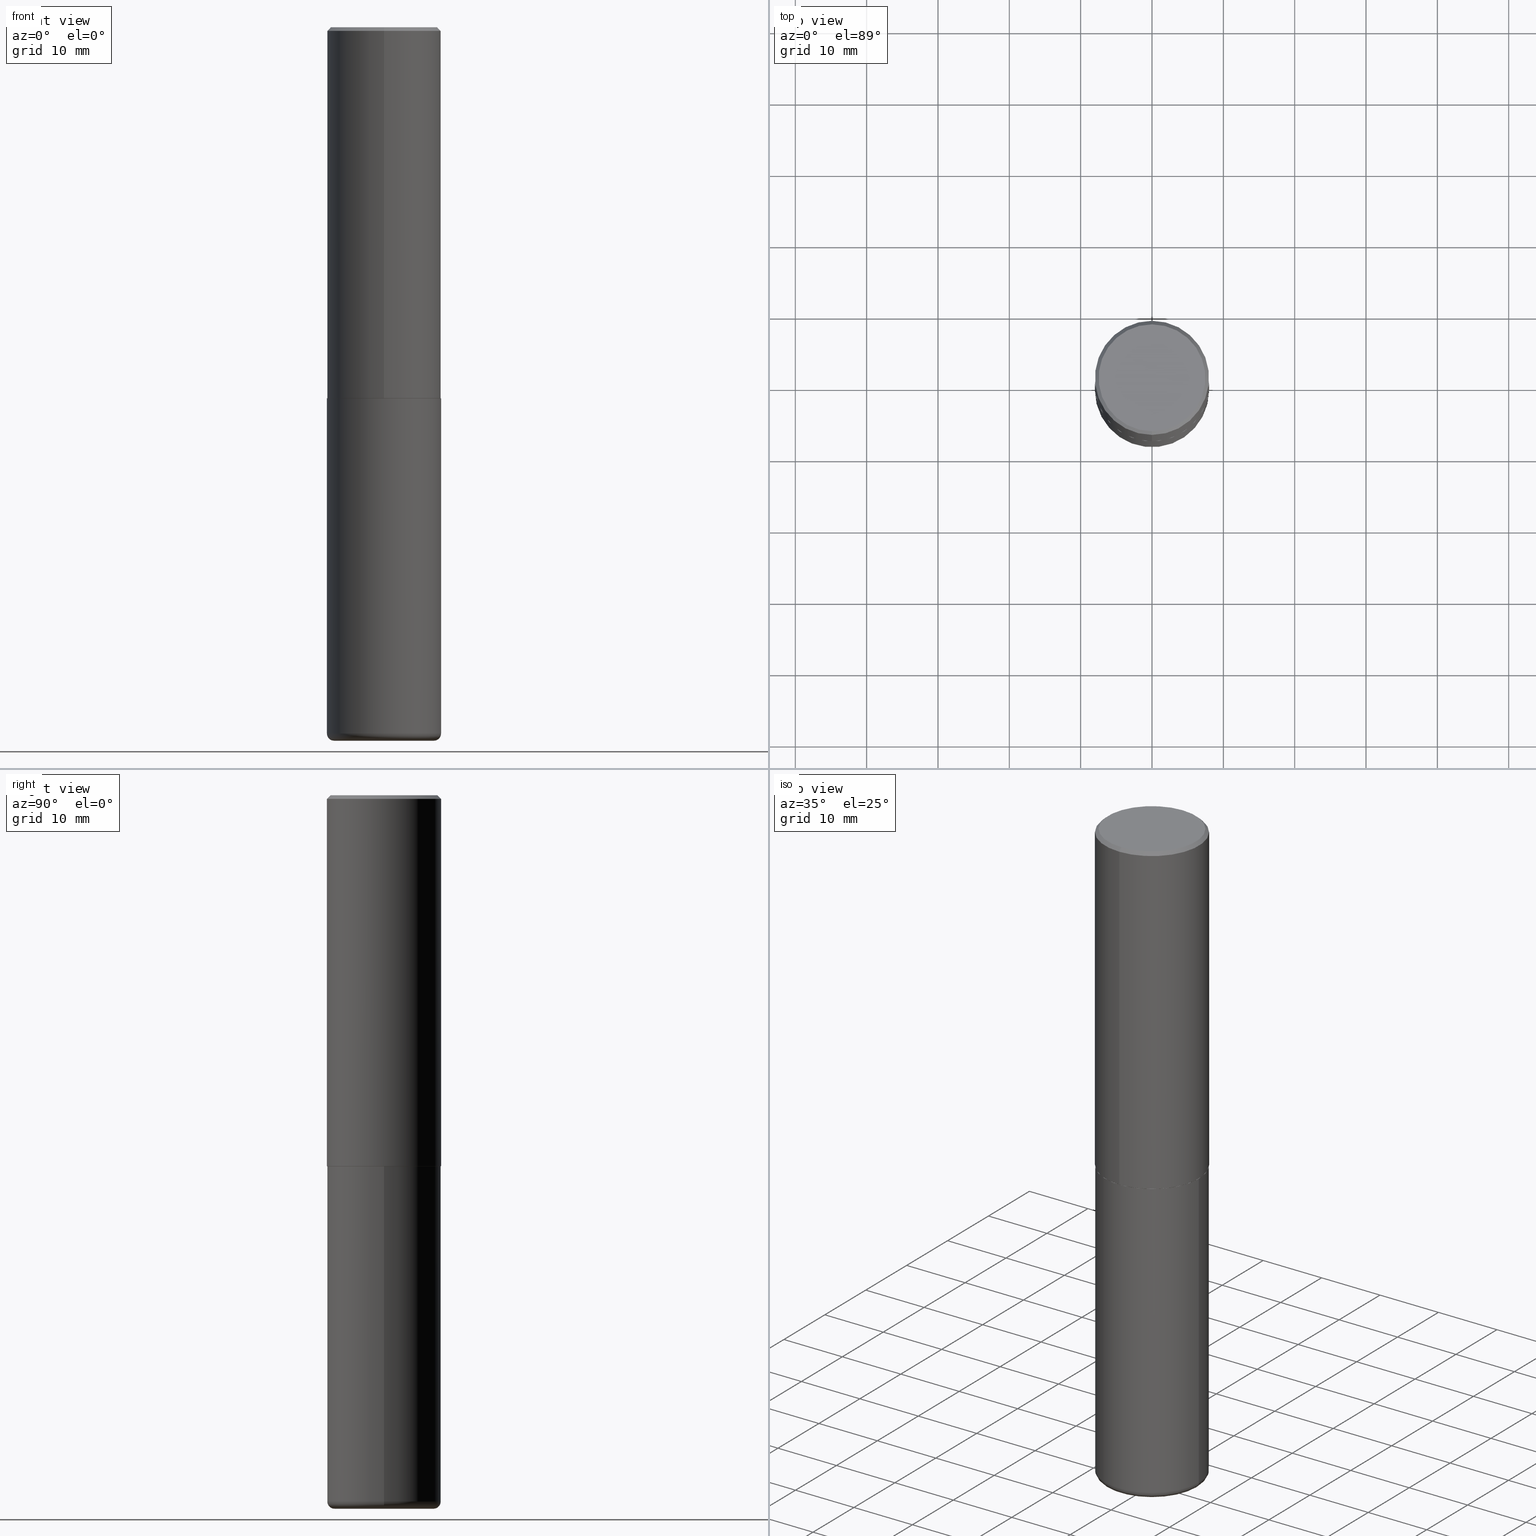
[diagram: canonical four-view strip — front | top / right | iso, engineering-drawing reading convention]
A machine part, canonical four-view strip (front | top / right | iso — engineering-drawing reading convention). The complete STEP part file that produces these views, byte-faithful:
ISO-10303-21;
HEADER;
FILE_DESCRIPTION (( 'STEP AP203' ),
    '1' );
FILE_NAME ('47562.STEP',
    '2024-03-06T11:44:48',
    ( '' ),
    ( '' ),
    'SwSTEP 2.0',
    'SolidWorks 2023',
    '' );
FILE_SCHEMA (( 'CONFIG_CONTROL_DESIGN' ));
ENDSEC;

DATA;
#1 = CIRCLE ( 'NONE', #252, 0.2755500000000000171 ) ;
#2 = EDGE_LOOP ( 'NONE', ( #367, #11, #34, #91 ) ) ;
#3 = CARTESIAN_POINT ( 'NONE',  ( -2.160713844398144151E-15, -0.3149500000000002298, -0.01999999999999896999 ) ) ;
#4 = LINE ( 'NONE', #128, #94 ) ;
#5 = ORIENTED_EDGE ( 'NONE', *, *, #264, .F. ) ;
#6 = CARTESIAN_POINT ( 'NONE',  ( 2.059624841783566430E-15, 0.2949500000000003230, -1.121269247573966471E-15 ) ) ;
#7 = CARTESIAN_POINT ( 'NONE',  ( 2.129454468560428545E-15, 0.2949500000000003230, -1.213358457966104521E-15 ) ) ;
#8 = CARTESIAN_POINT ( 'NONE',  ( 5.009428752644114609E-29, -7.143371324355440401E-15, -2.047200000000000131 ) ) ;
#9 = EDGE_CURVE ( 'NONE', #204, #413, #243, .T. ) ;
#10 = CIRCLE ( 'NONE', #346, 0.3149500000000001743 ) ;
#11 = ORIENTED_EDGE ( 'NONE', *, *, #264, .T. ) ;
#12 = ORIENTED_EDGE ( 'NONE', *, *, #51, .T. ) ;
#13 = PLANE ( 'NONE',  #194 ) ;
#14 = CC_DESIGN_PERSON_AND_ORGANIZATION_ASSIGNMENT ( #407, #236, ( #359 ) ) ;
#15 = PERSON ( 'UNSPECIFIED', 'UNSPECIFIED', 'UNSPECIFIED', ('UNSPECIFIED'), ('UNSPECIFIED'), ('UNSPECIFIED') ) ;
#16 = VECTOR ( 'NONE', #164, 39.37007874015748143 ) ;
#17 = VERTEX_POINT ( 'NONE', #262 ) ;
#18 = VECTOR ( 'NONE', #229, 39.37007874015748143 ) ;
#19 =( NAMED_UNIT ( * ) PLANE_ANGLE_UNIT ( ) SI_UNIT ( $, .RADIAN. ) );
#20 = APPLICATION_PROTOCOL_DEFINITION ( 'international standard', 'config_control_design', 1994, #196 ) ;
#21 = CARTESIAN_POINT ( 'NONE',  ( 4.893931958425293692E-31, -6.978674603707955407E-17, -0.02000000000000006981 ) ) ;
#22 = ORIENTED_EDGE ( 'NONE', *, *, #136, .T. ) ;
#23 = ADVANCED_FACE ( 'NONE', ( #285 ), #263, .T. ) ;
#24 = ORIENTED_EDGE ( 'NONE', *, *, #335, .T. ) ;
#25 = AXIS2_PLACEMENT_3D ( 'NONE', #269, #339, #172 ) ;
#26 = EDGE_CURVE ( 'NONE', #365, #413, #100, .T. ) ;
#27 = FACE_OUTER_BOUND ( 'NONE', #401, .T. ) ;
#28 = AXIS2_PLACEMENT_3D ( 'NONE', #112, #304, #148 ) ;
#29 = DATE_AND_TIME ( #311, #300 ) ;
#30 = AXIS2_PLACEMENT_3D ( 'NONE', #60, #323, #38 ) ;
#31 = DIRECTION ( 'NONE',  ( -2.446965979212638438E-29, 3.489337301853966019E-15, 1.000000000000000000 ) ) ;
#32 = DIRECTION ( 'NONE',  ( -4.937700262165222518E-15, -0.7071067811866417196, 0.7071067811864533148 ) ) ;
#33 = ORIENTED_EDGE ( 'NONE', *, *, #402, .T. ) ;
#34 = ORIENTED_EDGE ( 'NONE', *, *, #414, .F. ) ;
#35 = ADVANCED_FACE ( 'NONE', ( #293 ), #222, .F. ) ;
#36 = LOCAL_TIME ( 6, 44, 48.00000000000000000, #368 ) ;
#37 = DIRECTION ( 'NONE',  ( -2.445468806185136597E-29, 3.491481338843145583E-15, 1.000000000000000000 ) ) ;
#38 = DIRECTION ( 'NONE',  ( -6.982962677686265922E-15, -1.000000000000000000, 3.489337301853966019E-15 ) ) ;
#39 = FACE_OUTER_BOUND ( 'NONE', #50, .T. ) ;
#40 = CARTESIAN_POINT ( 'NONE',  ( 2.234301632597685968E-15, 0.3139499999999928459, -2.047200000000001463 ) ) ;
#41 = ADVANCED_FACE ( 'NONE', ( #39 ), #162, .T. ) ;
#42 = CARTESIAN_POINT ( 'NONE',  ( 5.006363740022212801E-29, -7.147760596879689780E-15, -2.047200000000000575 ) ) ;
#43 = CARTESIAN_POINT ( 'NONE',  ( 0.2755500000000000171, -1.567011739686191643E-14, -3.937000000000000277 ) ) ;
#44 = CIRCLE ( 'NONE', #28, 0.3139500000000000068 ) ;
#45 = CARTESIAN_POINT ( 'NONE',  ( 5.009428752644115170E-29, -7.143371324355441979E-15, -2.047200000000000575 ) ) ;
#46 = COORDINATED_UNIVERSAL_TIME_OFFSET ( 5, 0, .BEHIND. ) ;
#47 = CARTESIAN_POINT ( 'NONE',  ( 5.006363740022212801E-29, -7.147760596879689780E-15, -2.047200000000000575 ) ) ;
#48 = AXIS2_PLACEMENT_3D ( 'NONE', #209, #410, #124 ) ;
#49 = DATE_AND_TIME ( #205, #195 ) ;
#50 = EDGE_LOOP ( 'NONE', ( #5, #380, #89, #258 ) ) ;
#51 = EDGE_CURVE ( 'NONE', #257, #75, #295, .T. ) ;
#52 = CARTESIAN_POINT ( 'NONE',  ( 9.627810689950883669E-29, -1.374596203102546341E-14, -3.937000000000000277 ) ) ;
#53 = AXIS2_PLACEMENT_3D ( 'NONE', #379, #223, #287 ) ;
#54 = ADVANCED_FACE ( 'NONE', ( #265 ), #412, .T. ) ;
#55 = FACE_OUTER_BOUND ( 'NONE', #2, .T. ) ;
#56 = DIRECTION ( 'NONE',  ( 1.000000000000000000, -6.982962677686266711E-15, 4.876176775795936353E-29 ) ) ;
#57 = CARTESIAN_POINT ( 'NONE',  ( 4.893931958425293692E-31, -6.978674603707955407E-17, -0.02000000000000006981 ) ) ;
#58 = FACE_OUTER_BOUND ( 'NONE', #274, .T. ) ;
#59 = ORIENTED_EDGE ( 'NONE', *, *, #329, .T. ) ;
#60 = CARTESIAN_POINT ( 'NONE',  ( 0.000000000000000000, 0.000000000000000000, 0.000000000000000000 ) ) ;
#61 = PERSON_AND_ORGANIZATION ( #15, #313 ) ;
#62 = DIRECTION ( 'NONE',  ( 1.000000000000000000, -6.982962677686266711E-15, 4.876176775795936353E-29 ) ) ;
#63 = DIMENSIONAL_EXPONENTS ( 1.000000000000000000, 0.000000000000000000, 0.000000000000000000, 0.000000000000000000, 0.000000000000000000, 0.000000000000000000, 0.000000000000000000 ) ;
#64 = AXIS2_PLACEMENT_3D ( 'NONE', #134, #302, #350 ) ;
#65 = AXIS2_PLACEMENT_3D ( 'NONE', #397, #242, #56 ) ;
#66 = DIRECTION ( 'NONE',  ( 6.982962677686265922E-15, 1.000000000000000000, -3.489337301853966019E-15 ) ) ;
#67 = ADVANCED_FACE ( 'NONE', ( #231 ), #377, .T. ) ;
#68 = LINE ( 'NONE', #197, #381 ) ;
#69 = DIRECTION ( 'NONE',  ( 1.000000000000000000, -6.982962677686264344E-15, 0.000000000000000000 ) ) ;
#70 = CARTESIAN_POINT ( 'NONE',  ( 9.531459218987189074E-29, -1.360839766627504420E-14, -3.897600000000000176 ) ) ;
#71 = DIRECTION ( 'NONE',  ( -6.982962677686266711E-15, -1.000000000000000000, 3.491481338843145583E-15 ) ) ;
#72 = ORIENTED_EDGE ( 'NONE', *, *, #191, .F. ) ;
#73 = CARTESIAN_POINT ( 'NONE',  ( 0.3149500000000000077, -1.580768176161233565E-14, -3.897600000000000176 ) ) ;
#74 = CARTESIAN_POINT ( 'NONE',  ( 4.893931958425293692E-31, -6.978674603707955407E-17, -0.02000000000000006981 ) ) ;
#75 = VERTEX_POINT ( 'NONE', #343 ) ;
#76 = AXIS2_PLACEMENT_3D ( 'NONE', #6, #126, #66 ) ;
#77 =( CONVERSION_BASED_UNIT ( 'INCH', #176 ) LENGTH_UNIT ( ) NAMED_UNIT ( #63 ) );
#78 = APPROVAL ( #309, 'UNSPECIFIED' ) ;
#79 = APPROVAL_STATUS ( 'not_yet_approved' ) ;
#80 = VERTEX_POINT ( 'NONE', #153 ) ;
#81 = FACE_OUTER_BOUND ( 'NONE', #347, .T. ) ;
#82 = CARTESIAN_POINT ( 'NONE',  ( -2.199284095337291449E-15, -0.3149500000000002853, 1.098966783218907654E-15 ) ) ;
#83 = DIRECTION ( 'NONE',  ( 2.446965979212638438E-29, -3.489337301853966019E-15, -1.000000000000000000 ) ) ;
#84 = PERSON_AND_ORGANIZATION_ROLE ( 'creator' ) ;
#85 = AXIS2_PLACEMENT_3D ( 'NONE', #169, #111, #399 ) ;
#86 = PRODUCT_DEFINITION ( 'UNKNOWN', '', #253, #167 ) ;
#87 = ORIENTED_EDGE ( 'NONE', *, *, #366, .F. ) ;
#88 = CARTESIAN_POINT ( 'NONE',  ( -2.192301132659553370E-15, -0.3139500000000071678, -2.047199999999999243 ) ) ;
#89 = ORIENTED_EDGE ( 'NONE', *, *, #298, .T. ) ;
#90 = DIRECTION ( 'NONE',  ( -2.445468806185136597E-29, 3.491481338843145583E-15, 1.000000000000000000 ) ) ;
#91 = ORIENTED_EDGE ( 'NONE', *, *, #298, .F. ) ;
#92 = DIRECTION ( 'NONE',  ( -2.446965979212638438E-29, 3.489337301853966019E-15, 1.000000000000000000 ) ) ;
#93 = AXIS2_PLACEMENT_3D ( 'NONE', #8, #95, #351 ) ;
#94 = VECTOR ( 'NONE', #32, 39.37007874015748143 ) ;
#95 = DIRECTION ( 'NONE',  ( -2.446965979212638438E-29, 3.489337301853966019E-15, 1.000000000000000000 ) ) ;
#96 = DIRECTION ( 'NONE',  ( -2.445468806185136597E-29, 3.491481338843145583E-15, 1.000000000000000000 ) ) ;
#97 = AXIS2_PLACEMENT_3D ( 'NONE', #74, #83, #256 ) ;
#98 = COORDINATED_UNIVERSAL_TIME_OFFSET ( 5, 0, .BEHIND. ) ;
#99 = CC_DESIGN_APPROVAL ( #78, ( #253 ) ) ;
#100 = LINE ( 'NONE', #190, #16 ) ;
#101 = EDGE_LOOP ( 'NONE', ( #12, #238, #237, #340 ) ) ;
#102 = EDGE_CURVE ( 'NONE', #75, #297, #290, .T. ) ;
#103 = DATE_AND_TIME ( #125, #36 ) ;
#104 = ORIENTED_EDGE ( 'NONE', *, *, #281, .F. ) ;
#105 = ORIENTED_EDGE ( 'NONE', *, *, #352, .T. ) ;
#106 = VERTEX_POINT ( 'NONE', #338 ) ;
#107 = ORIENTED_EDGE ( 'NONE', *, *, #171, .F. ) ;
#108 = EDGE_CURVE ( 'NONE', #235, #142, #44, .T. ) ;
#109 = CARTESIAN_POINT ( 'NONE',  ( 2.199284095337290660E-15, 0.3149500000000000632, -0.02000000000000116615 ) ) ;
#110 = APPROVAL_PERSON_ORGANIZATION ( #175, #78, #211 ) ;
#111 = DIRECTION ( 'NONE',  ( 0.000000000000000000, 0.000000000000000000, 1.000000000000000000 ) ) ;
#112 = CARTESIAN_POINT ( 'NONE',  ( 5.009428752644114609E-29, -7.143371324355440401E-15, -2.047200000000000131 ) ) ;
#113 = CARTESIAN_POINT ( 'NONE',  ( 4.506783297642337076E-45, -6.426606338391306016E-31, -1.841784207842761497E-16 ) ) ;
#114 = EDGE_CURVE ( 'NONE', #325, #413, #152, .T. ) ;
#115 = AXIS2_PLACEMENT_3D ( 'NONE', #113, #358, #288 ) ;
#116 = APPLICATION_PROTOCOL_DEFINITION ( 'international standard', 'config_control_design', 1994, #177 ) ;
#117 = DIRECTION ( 'NONE',  ( 1.000000000000000000, -6.982962677686268288E-15, 0.000000000000000000 ) ) ;
#118 = ORIENTED_EDGE ( 'NONE', *, *, #171, .T. ) ;
#119 = DIRECTION ( 'NONE',  ( 1.000000000000000000, -6.982962677686264344E-15, 0.000000000000000000 ) ) ;
#120 = MANIFOLD_SOLID_BREP ( 'Body-Move/Copy2[1]', #185 ) ;
#121 = CLOSED_SHELL ( 'NONE', ( #373, #308, #127, #145, #67, #41, #260, #35 ) ) ;
#122 = APPROVAL_PERSON_ORGANIZATION ( #130, #294, #261 ) ;
#123 = SECURITY_CLASSIFICATION_LEVEL ( 'unclassified' ) ;
#124 = DIRECTION ( 'NONE',  ( 1.000000000000000000, -6.982962677686269866E-15, 4.883557194083113462E-29 ) ) ;
#125 = CALENDAR_DATE ( 2024, 6, 3 ) ;
#126 = DIRECTION ( 'NONE',  ( 2.446965979212638158E-29, -3.489337301853966019E-15, -1.000000000000000000 ) ) ;
#127 = ADVANCED_FACE ( 'NONE', ( #391 ), #336, .T. ) ;
#128 = CARTESIAN_POINT ( 'NONE',  ( -2.192301132659553370E-15, -0.3139500000000071678, -2.047199999999999243 ) ) ;
#129 = AXIS2_PLACEMENT_3D ( 'NONE', #382, #92, #344 ) ;
#130 = PERSON_AND_ORGANIZATION ( #15, #313 ) ;
#131 = CIRCLE ( 'NONE', #25, 0.3149500000000003408 ) ;
#132 = DIRECTION ( 'NONE',  ( -2.446965979212638438E-29, 3.489337301853966019E-15, 1.000000000000000000 ) ) ;
#133 = DIRECTION ( 'NONE',  ( -4.851104656540955597E-15, -0.7071067811865487940, -0.7071067811865461294 ) ) ;
#134 = CARTESIAN_POINT ( 'NONE',  ( 5.006981786664901703E-29, -7.139881987053586380E-15, -2.046200000000000241 ) ) ;
#135 = CYLINDRICAL_SURFACE ( 'NONE', #65, 0.3149500000000000077 ) ;
#136 = EDGE_CURVE ( 'NONE', #241, #297, #327, .T. ) ;
#137 = CARTESIAN_POINT ( 'NONE',  ( 5.006363740022212801E-29, -7.147760596879689780E-15, -2.047200000000000575 ) ) ;
#138 = SECURITY_CLASSIFICATION ( '', '', #123 ) ;
#139 = ORIENTED_EDGE ( 'NONE', *, *, #184, .T. ) ;
#140 = CARTESIAN_POINT ( 'NONE',  ( 9.531459218987189074E-29, -1.360839766627504420E-14, -3.897600000000000176 ) ) ;
#141 = EDGE_LOOP ( 'NONE', ( #332, #87, #392, #353 ) ) ;
#142 = VERTEX_POINT ( 'NONE', #88 ) ;
#143 = AXIS2_PLACEMENT_3D ( 'NONE', #140, #226, #69 ) ;
#144 = LOCAL_TIME ( 6, 44, 48.00000000000000000, #389 ) ;
#145 = ADVANCED_FACE ( 'NONE', ( #348 ), #388, .T. ) ;
#146 = ORIENTED_EDGE ( 'NONE', *, *, #366, .T. ) ;
#147 = EDGE_LOOP ( 'NONE', ( #374, #188, #105, #357 ) ) ;
#148 = DIRECTION ( 'NONE',  ( -6.982962677686266711E-15, -1.000000000000000000, 3.480615376543096919E-15 ) ) ;
#149 = AXIS2_PLACEMENT_3D ( 'NONE', #282, #386, #119 ) ;
#150 = ORIENTED_EDGE ( 'NONE', *, *, #246, .F. ) ;
#151 = CARTESIAN_POINT ( 'NONE',  ( 9.627810689950883669E-29, -1.374596203102546341E-14, -3.937000000000000277 ) ) ;
#152 = LINE ( 'NONE', #345, #18 ) ;
#153 = CARTESIAN_POINT ( 'NONE',  ( 0.3149500000000000077, -9.347044692216979650E-15, -2.047200000000000575 ) ) ;
#154 = EDGE_LOOP ( 'NONE', ( #199, #330 ) ) ;
#155 = CC_DESIGN_PERSON_AND_ORGANIZATION_ASSIGNMENT ( #160, #163, ( #253 ) ) ;
#156 = CIRCLE ( 'NONE', #328, 0.03939999999999999752 ) ;
#157 = PLANE ( 'NONE',  #296 ) ;
#158 = DIRECTION ( 'NONE',  ( -6.982962677686266711E-15, -1.000000000000000000, 3.480615376543096919E-15 ) ) ;
#159 = CARTESIAN_POINT ( 'NONE',  ( -0.3149500000000000077, -8.140224785300930216E-15, -2.047200000000000575 ) ) ;
#160 = PERSON_AND_ORGANIZATION ( #15, #313 ) ;
#161 = ADVANCED_FACE ( 'NONE', ( #27 ), #369, .T. ) ;
#162 = CONICAL_SURFACE ( 'NONE', #93, 0.3139500000000000068, 0.7853981633975849475 ) ;
#163 = PERSON_AND_ORGANIZATION_ROLE ( 'creator' ) ;
#164 = DIRECTION ( 'NONE',  ( -2.446965979212638158E-29, 3.489337301853966019E-15, 1.000000000000000000 ) ) ;
#165 = CARTESIAN_POINT ( 'NONE',  ( 0.2755500000000000171, -1.553255303211149406E-14, -3.897600000000000176 ) ) ;
#166 = LINE ( 'NONE', #284, #355 ) ;
#167 = DESIGN_CONTEXT ( 'detailed design', #177, 'design' ) ;
#168 = DIRECTION ( 'NONE',  ( 1.000000000000000000, -6.982962677686268288E-15, 0.000000000000000000 ) ) ;
#169 = CARTESIAN_POINT ( 'NONE',  ( 0.000000000000000000, 0.000000000000000000, 0.000000000000000000 ) ) ;
#170 = ORIENTED_EDGE ( 'NONE', *, *, #9, .F. ) ;
#171 = EDGE_CURVE ( 'NONE', #106, #325, #193, .T. ) ;
#172 = DIRECTION ( 'NONE',  ( -6.982962677686265922E-15, -1.000000000000000000, 3.469564049740289220E-15 ) ) ;
#173 = ORIENTED_EDGE ( 'NONE', *, *, #281, .T. ) ;
#174 = CC_DESIGN_SECURITY_CLASSIFICATION ( #138, ( #253 ) ) ;
#175 = PERSON_AND_ORGANIZATION ( #15, #313 ) ;
#176 = LENGTH_MEASURE_WITH_UNIT ( LENGTH_MEASURE( 0.02539999999999999897 ), #200 );
#177 = APPLICATION_CONTEXT ( 'configuration controlled 3d designs of mechanical parts and assemblies' ) ;
#178 = DIRECTION ( 'NONE',  ( 2.438088387897960049E-29, -3.491481338843145188E-15, -1.000000000000000000 ) ) ;
#179 = ADVANCED_FACE ( 'NONE', ( #214 ), #208, .T. ) ;
#180 = AXIS2_PLACEMENT_3D ( 'NONE', #52, #178, #306 ) ;
#181 = CIRCLE ( 'NONE', #234, 0.3149500000000000077 ) ;
#182 = CARTESIAN_POINT ( 'NONE',  ( 0.3149500000000000077, -2.199284095337289871E-15, 1.535751875536930130E-29 ) ) ;
#183 = ORIENTED_EDGE ( 'NONE', *, *, #352, .F. ) ;
#184 = EDGE_CURVE ( 'NONE', #75, #257, #1, .T. ) ;
#185 = CLOSED_SHELL ( 'NONE', ( #23, #54, #408, #395, #161, #179 ) ) ;
#186 = CC_DESIGN_APPROVAL ( #294, ( #138 ) ) ;
#187 = PERSON_AND_ORGANIZATION ( #15, #313 ) ;
#188 = ORIENTED_EDGE ( 'NONE', *, *, #384, .T. ) ;
#189 = CALENDAR_DATE ( 2024, 6, 3 ) ;
#190 = CARTESIAN_POINT ( 'NONE',  ( 2.237854346276437168E-15, 0.3149500000000002853, -1.098966783218907654E-15 ) ) ;
#191 = EDGE_CURVE ( 'NONE', #142, #235, #232, .T. ) ;
#192 = DIRECTION ( 'NONE',  ( -2.446965979212638438E-29, 3.489337301853966019E-15, 1.000000000000000000 ) ) ;
#193 = CIRCLE ( 'NONE', #129, 0.2949500000000003230 ) ;
#194 = AXIS2_PLACEMENT_3D ( 'NONE', #45, #267, #270 ) ;
#195 = LOCAL_TIME ( 6, 44, 48.00000000000000000, #378 ) ;
#196 = APPLICATION_CONTEXT ( 'configuration controlled 3d designs of mechanical parts and assemblies' ) ;
#197 = CARTESIAN_POINT ( 'NONE',  ( 2.230748918918884280E-15, 0.3139499999999928459, -2.047200000000001463 ) ) ;
#198 = CIRCLE ( 'NONE', #115, 0.2949500000000003230 ) ;
#199 = ORIENTED_EDGE ( 'NONE', *, *, #51, .F. ) ;
#200 =( LENGTH_UNIT ( ) NAMED_UNIT ( * ) SI_UNIT ( $, .METRE. ) );
#201 = CC_DESIGN_DATE_AND_TIME_ASSIGNMENT ( #49, #337, ( #86 ) ) ;
#202 = APPROVAL_ROLE ( '' ) ;
#203 = DIRECTION ( 'NONE',  ( -2.446965979212638158E-29, 3.489337301853966019E-15, 1.000000000000000000 ) ) ;
#204 = VERTEX_POINT ( 'NONE', #417 ) ;
#205 = CALENDAR_DATE ( 2024, 6, 3 ) ;
#206 = FACE_OUTER_BOUND ( 'NONE', #244, .T. ) ;
#207 = ORIENTED_EDGE ( 'NONE', *, *, #329, .F. ) ;
#208 = PLANE ( 'NONE',  #180 ) ;
#209 = CARTESIAN_POINT ( 'NONE',  ( 9.531459218987189074E-29, -1.360839766627504420E-14, -3.897600000000000176 ) ) ;
#210 = AXIS2_PLACEMENT_3D ( 'NONE', #57, #132, #383 ) ;
#211 = APPROVAL_ROLE ( '' ) ;
#212 = ORIENTED_EDGE ( 'NONE', *, *, #335, .F. ) ;
#213 = EDGE_CURVE ( 'NONE', #106, #204, #318, .T. ) ;
#214 = FACE_OUTER_BOUND ( 'NONE', #154, .T. ) ;
#215 = ORIENTED_EDGE ( 'NONE', *, *, #286, .T. ) ;
#216 = AXIS2_PLACEMENT_3D ( 'NONE', #404, #240, #375 ) ;
#217 = CC_DESIGN_APPROVAL ( #228, ( #86 ) ) ;
#218 = DIRECTION ( 'NONE',  ( -6.982962677686264344E-15, -1.000000000000000000, 3.483117034309589160E-15 ) ) ;
#219 = PRODUCT_RELATED_PRODUCT_CATEGORY ( 'detail', '', ( #359 ) ) ;
#220 = CARTESIAN_POINT ( 'NONE',  ( 0.000000000000000000, 0.000000000000000000, 0.000000000000000000 ) ) ;
#221 = PERSON_AND_ORGANIZATION_ROLE ( 'design_supplier' ) ;
#222 = PLANE ( 'NONE',  #76 ) ;
#223 = DIRECTION ( 'NONE',  ( -2.446965979212638438E-29, 3.489337301853966019E-15, 1.000000000000000000 ) ) ;
#224 = AXIS2_PLACEMENT_3D ( 'NONE', #314, #96, #168 ) ;
#225 = CONICAL_SURFACE ( 'NONE', #376, 0.3139500000000000068, 0.7853981633975849475 ) ;
#226 = DIRECTION ( 'NONE',  ( -2.445468806185136597E-29, 3.491481338843145583E-15, 1.000000000000000000 ) ) ;
#227 = DIRECTION ( 'NONE',  ( 1.000000000000000000, -6.982962677686269866E-15, 4.883557194083113462E-29 ) ) ;
#228 = APPROVAL ( #79, 'UNSPECIFIED' ) ;
#229 = DIRECTION ( 'NONE',  ( 4.937700262164540154E-15, 0.7071067811865440200, -0.7071067811865511255 ) ) ;
#230 = ORIENTED_EDGE ( 'NONE', *, *, #114, .F. ) ;
#231 = FACE_OUTER_BOUND ( 'NONE', #147, .T. ) ;
#232 = CIRCLE ( 'NONE', #53, 0.3139500000000000068 ) ;
#233 = DIRECTION ( 'NONE',  ( 1.000000000000000000, -6.982962677686266711E-15, 0.000000000000000000 ) ) ;
#234 = AXIS2_PLACEMENT_3D ( 'NONE', #42, #400, #233 ) ;
#235 = VERTEX_POINT ( 'NONE', #40 ) ;
#236 = PERSON_AND_ORGANIZATION_ROLE ( 'design_owner' ) ;
#237 = ORIENTED_EDGE ( 'NONE', *, *, #136, .F. ) ;
#238 = ORIENTED_EDGE ( 'NONE', *, *, #102, .T. ) ;
#239 = DATE_AND_TIME ( #273, #321 ) ;
#240 = DIRECTION ( 'NONE',  ( 7.105427357601001859E-15, 1.000000000000000000, -3.491481338843145583E-15 ) ) ;
#241 = VERTEX_POINT ( 'NONE', #73 ) ;
#242 = DIRECTION ( 'NONE',  ( -2.445468806185136597E-29, 3.491481338843145583E-15, 1.000000000000000000 ) ) ;
#243 = CIRCLE ( 'NONE', #210, 0.3149500000000001743 ) ;
#244 = EDGE_LOOP ( 'NONE', ( #268, #416, #24, #104 ) ) ;
#245 = VECTOR ( 'NONE', #310, 39.37007874015748143 ) ;
#246 = EDGE_CURVE ( 'NONE', #297, #241, #362, .T. ) ;
#247 = PERSON_AND_ORGANIZATION ( #15, #313 ) ;
#248 = LINE ( 'NONE', #182, #245 ) ;
#249 = ORIENTED_EDGE ( 'NONE', *, *, #102, .F. ) ;
#250 = UNCERTAINTY_MEASURE_WITH_UNIT (LENGTH_MEASURE( 1.000000000000000082E-05 ), #77, 'distance_accuracy_value', 'NONE');
#251 = CC_DESIGN_PERSON_AND_ORGANIZATION_ASSIGNMENT ( #187, #221, ( #253 ) ) ;
#252 = AXIS2_PLACEMENT_3D ( 'NONE', #151, #409, #117 ) ;
#253 = PRODUCT_DEFINITION_FORMATION_WITH_SPECIFIED_SOURCE ( 'ANY', '', #359, .NOT_KNOWN. ) ;
#254 = PERSON_AND_ORGANIZATION_ROLE ( 'classification_officer' ) ;
#255 = APPROVAL_STATUS ( 'not_yet_approved' ) ;
#256 = DIRECTION ( 'NONE',  ( 6.982962677686264344E-15, 1.000000000000000000, -3.483117034309589160E-15 ) ) ;
#257 = VERTEX_POINT ( 'NONE', #43 ) ;
#258 = ORIENTED_EDGE ( 'NONE', *, *, #384, .F. ) ;
#259 = VECTOR ( 'NONE', #203, 39.37007874015748143 ) ;
#260 = ADVANCED_FACE ( 'NONE', ( #364 ), #13, .F. ) ;
#261 = APPROVAL_ROLE ( '' ) ;
#262 = CARTESIAN_POINT ( 'NONE',  ( -2.199284095337241750E-15, -0.3149500000000075017, -2.046199999999998909 ) ) ;
#263 = CYLINDRICAL_SURFACE ( 'NONE', #354, 0.3149500000000000077 ) ;
#264 = EDGE_CURVE ( 'NONE', #235, #365, #68, .T. ) ;
#265 = FACE_OUTER_BOUND ( 'NONE', #101, .T. ) ;
#266 =( GEOMETRIC_REPRESENTATION_CONTEXT ( 3 ) GLOBAL_UNCERTAINTY_ASSIGNED_CONTEXT ( ( #250 ) ) GLOBAL_UNIT_ASSIGNED_CONTEXT ( ( #77, #19, #299 ) ) REPRESENTATION_CONTEXT ( 'NONE', 'WORKASPACE' ) );
#267 = DIRECTION ( 'NONE',  ( -2.446965979212638158E-29, 3.489337301853966019E-15, 1.000000000000000000 ) ) ;
#268 = ORIENTED_EDGE ( 'NONE', *, *, #402, .F. ) ;
#269 = CARTESIAN_POINT ( 'NONE',  ( 5.006981786664901703E-29, -7.139881987053586380E-15, -2.046200000000000241 ) ) ;
#270 = DIRECTION ( 'NONE',  ( -6.982962677686265922E-15, -1.000000000000000000, 3.489337301853966019E-15 ) ) ;
#271 = AXIS2_PLACEMENT_3D ( 'NONE', #349, #279, #341 ) ;
#272 = DIRECTION ( 'NONE',  ( 2.438088387897960049E-29, -3.491481338843145188E-15, -1.000000000000000000 ) ) ;
#273 = CALENDAR_DATE ( 2024, 6, 3 ) ;
#274 = EDGE_LOOP ( 'NONE', ( #398, #289, #170, #183 ) ) ;
#275 = CARTESIAN_POINT ( 'NONE',  ( 2.237854346276462412E-15, 0.3149499999999931799, -2.046200000000001129 ) ) ;
#276 = CC_DESIGN_PERSON_AND_ORGANIZATION_ASSIGNMENT ( #247, #84, ( #86 ) ) ;
#277 = MECHANICAL_CONTEXT ( 'NONE', #196, 'mechanical' ) ;
#278 = CIRCLE ( 'NONE', #291, 0.3149500000000000077 ) ;
#279 = DIRECTION ( 'NONE',  ( -2.446965979212638438E-29, 3.489337301853966019E-15, 1.000000000000000000 ) ) ;
#280 = DIRECTION ( 'NONE',  ( 6.982962677686264344E-15, 1.000000000000000000, -3.483117034309589160E-15 ) ) ;
#281 = EDGE_CURVE ( 'NONE', #301, #80, #181, .T. ) ;
#282 = CARTESIAN_POINT ( 'NONE',  ( 9.531459218987189074E-29, -1.360839766627504420E-14, -3.897600000000000176 ) ) ;
#283 = EDGE_LOOP ( 'NONE', ( #146, #118 ) ) ;
#284 = CARTESIAN_POINT ( 'NONE',  ( -0.3149500000000000077, 2.237854346276435590E-15, -1.549218606675782676E-29 ) ) ;
#285 = FACE_OUTER_BOUND ( 'NONE', #334, .T. ) ;
#286 = EDGE_CURVE ( 'NONE', #257, #241, #156, .T. ) ;
#287 = DIRECTION ( 'NONE',  ( -6.982962677686266711E-15, -1.000000000000000000, 3.480615376543096919E-15 ) ) ;
#288 = DIRECTION ( 'NONE',  ( -6.982962677686265922E-15, -1.000000000000000000, 3.489337301853966019E-15 ) ) ;
#289 = ORIENTED_EDGE ( 'NONE', *, *, #26, .T. ) ;
#290 = CIRCLE ( 'NONE', #216, 0.03939999999999999752 ) ;
#291 = AXIS2_PLACEMENT_3D ( 'NONE', #47, #90, #342 ) ;
#292 = APPROVAL_DATE_TIME ( #319, #294 ) ;
#293 = FACE_OUTER_BOUND ( 'NONE', #283, .T. ) ;
#294 = APPROVAL ( #255, 'UNSPECIFIED' ) ;
#295 = CIRCLE ( 'NONE', #224, 0.2755500000000000171 ) ;
#296 = AXIS2_PLACEMENT_3D ( 'NONE', #137, #272, #333 ) ;
#297 = VERTEX_POINT ( 'NONE', #315 ) ;
#298 = EDGE_CURVE ( 'NONE', #142, #17, #4, .T. ) ;
#299 =( NAMED_UNIT ( * ) SI_UNIT ( $, .STERADIAN. ) SOLID_ANGLE_UNIT ( ) );
#300 = LOCAL_TIME ( 6, 44, 48.00000000000000000, #98 ) ;
#301 = VERTEX_POINT ( 'NONE', #159 ) ;
#302 = DIRECTION ( 'NONE',  ( -2.446965979212638438E-29, 3.489337301853966019E-15, 1.000000000000000000 ) ) ;
#303 = EDGE_CURVE ( 'NONE', #413, #204, #10, .T. ) ;
#304 = DIRECTION ( 'NONE',  ( -2.446965979212638438E-29, 3.489337301853966019E-15, 1.000000000000000000 ) ) ;
#305 = APPROVAL_DATE_TIME ( #239, #228 ) ;
#306 = DIRECTION ( 'NONE',  ( -1.000000000000000000, 6.982962677686265922E-15, -4.876176775795935793E-29 ) ) ;
#307 = AXIS2_PLACEMENT_3D ( 'NONE', #21, #312, #280 ) ;
#308 = ADVANCED_FACE ( 'NONE', ( #58 ), #418, .T. ) ;
#309 = APPROVAL_STATUS ( 'not_yet_approved' ) ;
#310 = DIRECTION ( 'NONE',  ( -2.445468806185136877E-29, 3.491481338843145188E-15, 1.000000000000000000 ) ) ;
#311 = CALENDAR_DATE ( 2024, 6, 3 ) ;
#312 = DIRECTION ( 'NONE',  ( 2.446965979212638438E-29, -3.489337301853966019E-15, -1.000000000000000000 ) ) ;
#313 = ORGANIZATION ( 'UNSPECIFIED', 'UNSPECIFIED', '' ) ;
#314 = CARTESIAN_POINT ( 'NONE',  ( 9.627810689950883669E-29, -1.374596203102546341E-14, -3.937000000000000277 ) ) ;
#315 = CARTESIAN_POINT ( 'NONE',  ( -0.3149500000000000077, -1.137054331999860664E-14, -3.897600000000000176 ) ) ;
#316 = ORIENTED_EDGE ( 'NONE', *, *, #108, .F. ) ;
#317 = DATE_TIME_ROLE ( 'classification_date' ) ;
#318 = LINE ( 'NONE', #3, #320 ) ;
#319 = DATE_AND_TIME ( #189, #144 ) ;
#320 = VECTOR ( 'NONE', #133, 39.37007874015748854 ) ;
#321 = LOCAL_TIME ( 6, 44, 48.00000000000000000, #46 ) ;
#322 = CC_DESIGN_DATE_AND_TIME_ASSIGNMENT ( #29, #317, ( #138 ) ) ;
#323 = DIRECTION ( 'NONE',  ( -2.446965979212638438E-29, 3.489337301853966019E-15, 1.000000000000000000 ) ) ;
#324 = DIRECTION ( 'NONE',  ( 5.024295867788748699E-15, 0.7071067811866466046, 0.7071067811864484298 ) ) ;
#325 = VERTEX_POINT ( 'NONE', #7 ) ;
#326 = DIRECTION ( 'NONE',  ( 1.000000000000000000, -6.982962677686278543E-15, 0.000000000000000000 ) ) ;
#327 = CIRCLE ( 'NONE', #149, 0.3149499999999999522 ) ;
#328 = AXIS2_PLACEMENT_3D ( 'NONE', #165, #71, #326 ) ;
#329 = EDGE_CURVE ( 'NONE', #80, #301, #278, .T. ) ;
#330 = ORIENTED_EDGE ( 'NONE', *, *, #184, .F. ) ;
#331 = DIRECTION ( 'NONE',  ( -2.445468806185136597E-29, 3.491481338843145583E-15, 1.000000000000000000 ) ) ;
#332 = ORIENTED_EDGE ( 'NONE', *, *, #213, .F. ) ;
#333 = DIRECTION ( 'NONE',  ( -1.000000000000000000, 6.982962677686265922E-15, -4.876176775795935793E-29 ) ) ;
#334 = EDGE_LOOP ( 'NONE', ( #22, #33, #207, #212 ) ) ;
#335 = EDGE_CURVE ( 'NONE', #241, #80, #248, .T. ) ;
#336 = CONICAL_SURFACE ( 'NONE', #97, 0.3149500000000001743, 0.7853981633974467247 ) ;
#337 = DATE_TIME_ROLE ( 'creation_date' ) ;
#338 = CARTESIAN_POINT ( 'NONE',  ( -2.092108864420429609E-15, -0.2949500000000003230, 8.450016163975523199E-16 ) ) ;
#339 = DIRECTION ( 'NONE',  ( -2.446965979212638438E-29, 3.489337301853966019E-15, 1.000000000000000000 ) ) ;
#340 = ORIENTED_EDGE ( 'NONE', *, *, #286, .F. ) ;
#341 = DIRECTION ( 'NONE',  ( -6.982962677686265922E-15, -1.000000000000000000, 3.489337301853966019E-15 ) ) ;
#342 = DIRECTION ( 'NONE',  ( 1.000000000000000000, -6.982962677686266711E-15, 0.000000000000000000 ) ) ;
#343 = CARTESIAN_POINT ( 'NONE',  ( -0.2755500000000000171, -1.157930242131855792E-14, -3.937000000000000277 ) ) ;
#344 = DIRECTION ( 'NONE',  ( -6.982962677686265922E-15, -1.000000000000000000, 3.489337301853966019E-15 ) ) ;
#345 = CARTESIAN_POINT ( 'NONE',  ( 2.199284095337290660E-15, 0.3149500000000000632, -0.02000000000000116615 ) ) ;
#346 = AXIS2_PLACEMENT_3D ( 'NONE', #361, #192, #218 ) ;
#347 = EDGE_LOOP ( 'NONE', ( #59, #173 ) ) ;
#348 = FACE_OUTER_BOUND ( 'NONE', #141, .T. ) ;
#349 = CARTESIAN_POINT ( 'NONE',  ( 0.000000000000000000, 0.000000000000000000, 0.000000000000000000 ) ) ;
#350 = DIRECTION ( 'NONE',  ( -6.982962677686265922E-15, -1.000000000000000000, 3.469564049740289220E-15 ) ) ;
#351 = DIRECTION ( 'NONE',  ( -6.982962677686266711E-15, -1.000000000000000000, 3.480615376543096919E-15 ) ) ;
#352 = EDGE_CURVE ( 'NONE', #17, #204, #372, .T. ) ;
#353 = ORIENTED_EDGE ( 'NONE', *, *, #303, .T. ) ;
#354 = AXIS2_PLACEMENT_3D ( 'NONE', #220, #37, #62 ) ;
#355 = VECTOR ( 'NONE', #370, 39.37007874015748143 ) ;
#356 = EDGE_LOOP ( 'NONE', ( #72, #316 ) ) ;
#357 = ORIENTED_EDGE ( 'NONE', *, *, #303, .F. ) ;
#358 = DIRECTION ( 'NONE',  ( -2.446965979212638438E-29, 3.489337301853966019E-15, 1.000000000000000000 ) ) ;
#359 = PRODUCT ( '47562', '47562', '', ( #277 ) ) ;
#360 = CC_DESIGN_PERSON_AND_ORGANIZATION_ASSIGNMENT ( #61, #254, ( #138 ) ) ;
#361 = CARTESIAN_POINT ( 'NONE',  ( 4.893931958425293692E-31, -6.978674603707955407E-17, -0.02000000000000006981 ) ) ;
#362 = CIRCLE ( 'NONE', #143, 0.3149499999999999522 ) ;
#363 = PRODUCT_DEFINITION_SHAPE ( 'NONE', 'NONE',  #86 ) ;
#364 = FACE_OUTER_BOUND ( 'NONE', #356, .T. ) ;
#365 = VERTEX_POINT ( 'NONE', #275 ) ;
#366 = EDGE_CURVE ( 'NONE', #325, #106, #198, .T. ) ;
#367 = ORIENTED_EDGE ( 'NONE', *, *, #191, .T. ) ;
#368 = COORDINATED_UNIVERSAL_TIME_OFFSET ( 5, 0, .BEHIND. ) ;
#369 = TOROIDAL_SURFACE ( 'NONE', #48, 0.2755500000000000171, 0.03940000000000003222 ) ;
#370 = DIRECTION ( 'NONE',  ( -2.445468806185136877E-29, 3.491481338843145188E-15, 1.000000000000000000 ) ) ;
#371 = PERSON_AND_ORGANIZATION ( #15, #313 ) ;
#372 = LINE ( 'NONE', #82, #259 ) ;
#373 = ADVANCED_FACE ( 'NONE', ( #55 ), #225, .T. ) ;
#374 = ORIENTED_EDGE ( 'NONE', *, *, #26, .F. ) ;
#375 = DIRECTION ( 'NONE',  ( -1.000000000000000000, 7.105427357601025525E-15, 0.000000000000000000 ) ) ;
#376 = AXIS2_PLACEMENT_3D ( 'NONE', #415, #31, #158 ) ;
#377 = CYLINDRICAL_SURFACE ( 'NONE', #271, 0.3149500000000002853 ) ;
#378 = COORDINATED_UNIVERSAL_TIME_OFFSET ( 5, 0, .BEHIND. ) ;
#379 = CARTESIAN_POINT ( 'NONE',  ( 5.009428752644114609E-29, -7.143371324355440401E-15, -2.047200000000000131 ) ) ;
#380 = ORIENTED_EDGE ( 'NONE', *, *, #108, .T. ) ;
#381 = VECTOR ( 'NONE', #324, 39.37007874015748143 ) ;
#382 = CARTESIAN_POINT ( 'NONE',  ( 4.506783297642337076E-45, -6.426606338391306016E-31, -1.841784207842761497E-16 ) ) ;
#383 = DIRECTION ( 'NONE',  ( -6.982962677686264344E-15, -1.000000000000000000, 3.483117034309589160E-15 ) ) ;
#384 = EDGE_CURVE ( 'NONE', #365, #17, #394, .T. ) ;
#385 = SHAPE_DEFINITION_REPRESENTATION ( #363, #411 ) ;
#386 = DIRECTION ( 'NONE',  ( -2.445468806185136597E-29, 3.491481338843145583E-15, 1.000000000000000000 ) ) ;
#387 = APPROVAL_DATE_TIME ( #103, #78 ) ;
#388 = CONICAL_SURFACE ( 'NONE', #307, 0.3149500000000001743, 0.7853981633974467247 ) ;
#389 = COORDINATED_UNIVERSAL_TIME_OFFSET ( 5, 0, .BEHIND. ) ;
#390 = ORIENTED_EDGE ( 'NONE', *, *, #9, .T. ) ;
#391 = FACE_OUTER_BOUND ( 'NONE', #396, .T. ) ;
#392 = ORIENTED_EDGE ( 'NONE', *, *, #114, .T. ) ;
#393 = MANIFOLD_SOLID_BREP ( 'Body-Move/Copy2[2]', #121 ) ;
#394 = CIRCLE ( 'NONE', #64, 0.3149500000000003408 ) ;
#395 = ADVANCED_FACE ( 'NONE', ( #206 ), #135, .T. ) ;
#396 = EDGE_LOOP ( 'NONE', ( #107, #403, #390, #230 ) ) ;
#397 = CARTESIAN_POINT ( 'NONE',  ( 0.000000000000000000, 0.000000000000000000, 0.000000000000000000 ) ) ;
#398 = ORIENTED_EDGE ( 'NONE', *, *, #414, .T. ) ;
#399 = DIRECTION ( 'NONE',  ( 1.000000000000000000, 0.000000000000000000, 0.000000000000000000 ) ) ;
#400 = DIRECTION ( 'NONE',  ( -2.445468806185136597E-29, 3.491481338843145583E-15, 1.000000000000000000 ) ) ;
#401 = EDGE_LOOP ( 'NONE', ( #249, #139, #215, #150 ) ) ;
#402 = EDGE_CURVE ( 'NONE', #297, #301, #166, .T. ) ;
#403 = ORIENTED_EDGE ( 'NONE', *, *, #213, .T. ) ;
#404 = CARTESIAN_POINT ( 'NONE',  ( -0.2755500000000000171, -1.165049715788808683E-14, -3.897600000000000176 ) ) ;
#405 = AXIS2_PLACEMENT_3D ( 'NONE', #70, #331, #227 ) ;
#406 = APPROVAL_PERSON_ORGANIZATION ( #371, #228, #202 ) ;
#407 = PERSON_AND_ORGANIZATION ( #15, #313 ) ;
#408 = ADVANCED_FACE ( 'NONE', ( #81 ), #157, .F. ) ;
#409 = DIRECTION ( 'NONE',  ( -2.445468806185136597E-29, 3.491481338843145583E-15, 1.000000000000000000 ) ) ;
#410 = DIRECTION ( 'NONE',  ( -2.445468806185136597E-29, 3.491481338843145583E-15, 1.000000000000000000 ) ) ;
#411 = ADVANCED_BREP_SHAPE_REPRESENTATION ( '47562', ( #120, #393, #85 ), #266 ) ;
#412 = TOROIDAL_SURFACE ( 'NONE', #405, 0.2755500000000000171, 0.03940000000000003222 ) ;
#413 = VERTEX_POINT ( 'NONE', #109 ) ;
#414 = EDGE_CURVE ( 'NONE', #17, #365, #131, .T. ) ;
#415 = CARTESIAN_POINT ( 'NONE',  ( 5.009428752644114609E-29, -7.143371324355440401E-15, -2.047200000000000131 ) ) ;
#416 = ORIENTED_EDGE ( 'NONE', *, *, #246, .T. ) ;
#417 = CARTESIAN_POINT ( 'NONE',  ( -2.160713844398144151E-15, -0.3149500000000002298, -0.01999999999999896999 ) ) ;
#418 = CYLINDRICAL_SURFACE ( 'NONE', #30, 0.3149500000000002853 ) ;
ENDSEC;
END-ISO-10303-21;
